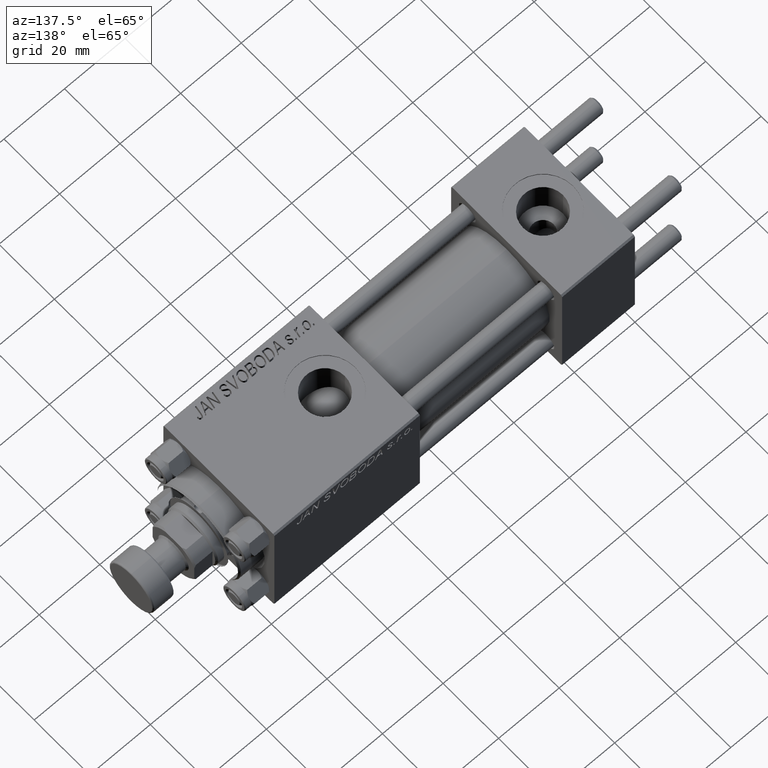
[diagram: clean part render]
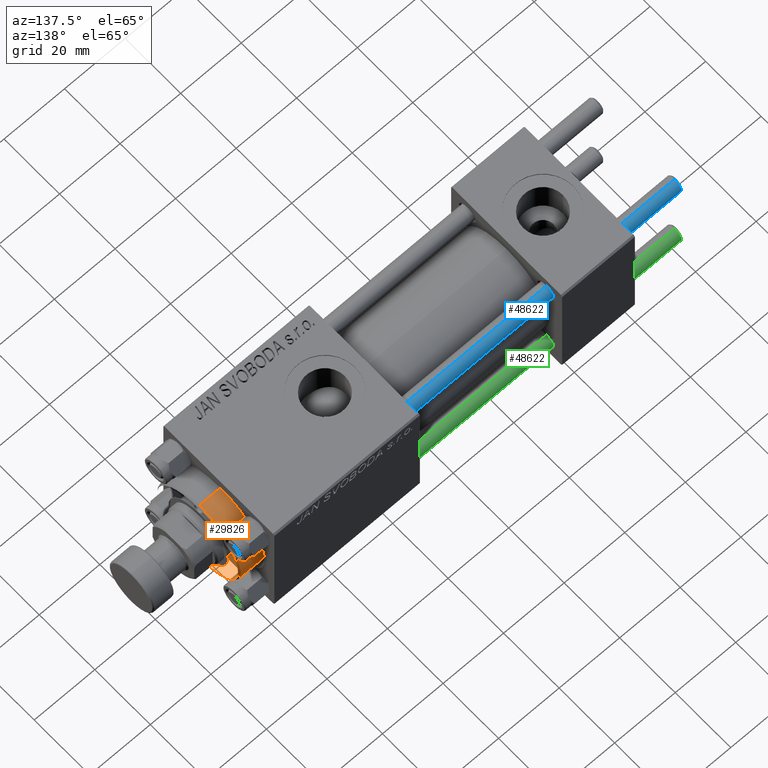
[diagram: same view with three faces highlighted in distinct colors, each labeled with its STEP entity id]
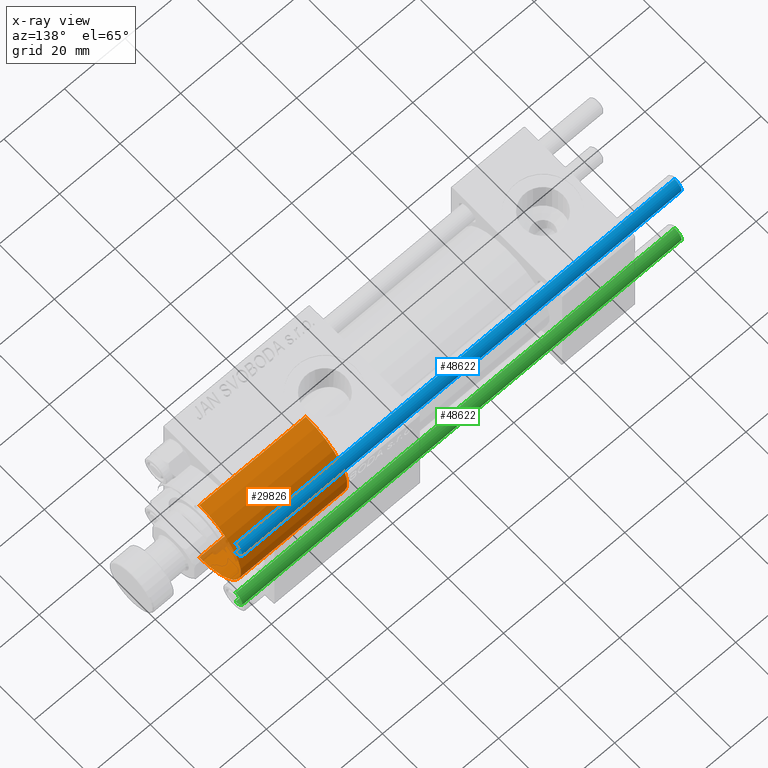
[diagram: x-ray of the same camera — body ghosted, the three highlighted faces saturated]
A machine part, auxiliary view with three faces highlighted in distinct colors.
The next image is the same camera in x-ray (body ghosted, the three faces saturated) — at least one of them is partly hidden behind the body in this view.
Their STEP definitions:

[orange] entity #29826 — the highlighted cylindrical surface (partial cylindrical patch) has radius 15 mm, axis along (-1, -0, 0).
#317 = CARTESIAN_POINT ( 'NONE',  ( -15.00000000000000000, 0.000000000000000000, 0.000000000000000000 ) ) ;
#350 = CARTESIAN_POINT ( 'NONE',  ( -15.00000000000000000, 0.000000000000000000, 35.19999999999999574 ) ) ;
#815 = DIRECTION ( 'NONE',  ( 0.000000000000000000, 0.000000000000000000, 1.000000000000000000 ) ) ;
#1138 = DIRECTION ( 'NONE',  ( -0.000000000000000000, -0.000000000000000000, -1.000000000000000000 ) ) ;
#1376 = CIRCLE ( 'NONE', #2202, 15.00000000000000000 ) ;
#1937 = EDGE_LOOP ( 'NONE', ( #17285, #32577, #9723, #36499 ) ) ;
#2202 = AXIS2_PLACEMENT_3D ( 'NONE', #9463, #815, #16836 ) ;
#2451 = DIRECTION ( 'NONE',  ( -0.000000000000000000, -0.000000000000000000, -1.000000000000000000 ) ) ;
#2825 = DIRECTION ( 'NONE',  ( -0.000000000000000000, -0.000000000000000000, -1.000000000000000000 ) ) ;
#5153 = DIRECTION ( 'NONE',  ( 0.000000000000000000, 0.000000000000000000, -1.000000000000000000 ) ) ;
#6276 = CIRCLE ( 'NONE', #13853, 15.00000000000000000 ) ;
#7955 = VERTEX_POINT ( 'NONE', #317 ) ;
#9463 = CARTESIAN_POINT ( 'NONE',  ( 0.000000000000000000, 0.000000000000000000, 0.000000000000000000 ) ) ;
#9723 = ORIENTED_EDGE ( 'NONE', *, *, #10672, .T. ) ;
#9825 = LINE ( 'NONE', #14018, #32662 ) ;
#10450 = CARTESIAN_POINT ( 'NONE',  ( 0.000000000000000000, 0.000000000000000000, 28.69999999999999929 ) ) ;
#10672 = EDGE_CURVE ( 'NONE', #24156, #7955, #1376, .T. ) ;
#13853 = AXIS2_PLACEMENT_3D ( 'NONE', #25389, #5153, #25138 ) ;
#14018 = CARTESIAN_POINT ( 'NONE',  ( 15.00000000000000000, 1.836970198721029589E-15, 28.69999999999999929 ) ) ;
#16836 = DIRECTION ( 'NONE',  ( 1.000000000000000000, 0.000000000000000000, 0.000000000000000000 ) ) ;
#17285 = ORIENTED_EDGE ( 'NONE', *, *, #25276, .T. ) ;
#18481 = EDGE_CURVE ( 'NONE', #24995, #24156, #9825, .T. ) ;
#19363 = CARTESIAN_POINT ( 'NONE',  ( 15.00000000000000000, 1.836970198721029589E-15, 0.000000000000000000 ) ) ;
#22043 = DIRECTION ( 'NONE',  ( -1.000000000000000000, 0.000000000000000000, 0.000000000000000000 ) ) ;
#22572 = FACE_OUTER_BOUND ( 'NONE', #1937, .T. ) ;
#24156 = VERTEX_POINT ( 'NONE', #19363 ) ;
#24507 = VERTEX_POINT ( 'NONE', #350 ) ;
#24995 = VERTEX_POINT ( 'NONE', #29452 ) ;
#25138 = DIRECTION ( 'NONE',  ( 1.000000000000000000, 0.000000000000000000, 0.000000000000000000 ) ) ;
#25276 = EDGE_CURVE ( 'NONE', #24507, #24995, #6276, .T. ) ;
#25389 = CARTESIAN_POINT ( 'NONE',  ( 0.000000000000000000, 0.000000000000000000, 35.19999999999999574 ) ) ;
#29452 = CARTESIAN_POINT ( 'NONE',  ( 15.00000000000000000, 1.836970198721029589E-15, 35.19999999999999574 ) ) ;
#29826 = ADVANCED_FACE ( 'NONE', ( #22572 ), #38840, .T. ) ;
#32577 = ORIENTED_EDGE ( 'NONE', *, *, #18481, .T. ) ;
#32662 = VECTOR ( 'NONE', #2451, 1000.000000000000000 ) ;
#33212 = CARTESIAN_POINT ( 'NONE',  ( -15.00000000000000000, 0.000000000000000000, 28.69999999999999929 ) ) ;
#35222 = VECTOR ( 'NONE', #1138, 1000.000000000000000 ) ;
#36499 = ORIENTED_EDGE ( 'NONE', *, *, #44558, .F. ) ;
#38840 = CYLINDRICAL_SURFACE ( 'NONE', #51654, 15.00000000000000000 ) ;
#44558 = EDGE_CURVE ( 'NONE', #24507, #7955, #48507, .T. ) ;
#48507 = LINE ( 'NONE', #33212, #35222 ) ;
#51654 = AXIS2_PLACEMENT_3D ( 'NONE', #10450, #2825, #22043 ) ;

[blue] entity #48622 — the highlighted cylindrical surface (edge-blend (fillet) strip) has radius 2.5 mm, axis along (-1, -0, -0).
#196 = VECTOR ( 'NONE', #8652, 1000.000000000000000 ) ;
#265 = CYLINDRICAL_SURFACE ( 'NONE', #5485, 2.500000000000000000 ) ;
#375 = AXIS2_PLACEMENT_3D ( 'NONE', #30600, #2238, #50365 ) ;
#2238 = DIRECTION ( 'NONE',  ( 0.000000000000000000, 0.000000000000000000, -1.000000000000000000 ) ) ;
#2258 = VERTEX_POINT ( 'NONE', #36150 ) ;
#2588 = CARTESIAN_POINT ( 'NONE',  ( -2.500000000000000000, 0.000000000000000000, 145.5000000000000284 ) ) ;
#5485 = AXIS2_PLACEMENT_3D ( 'NONE', #8409, #36272, #47881 ) ;
#8371 = EDGE_CURVE ( 'NONE', #16095, #2258, #51496, .T. ) ;
#8409 = CARTESIAN_POINT ( 'NONE',  ( 0.000000000000000000, 0.000000000000000000, 146.0000000000000000 ) ) ;
#8652 = DIRECTION ( 'NONE',  ( -0.000000000000000000, -0.000000000000000000, -1.000000000000000000 ) ) ;
#8777 = ORIENTED_EDGE ( 'NONE', *, *, #16245, .T. ) ;
#10783 = ORIENTED_EDGE ( 'NONE', *, *, #19856, .T. ) ;
#14664 = DIRECTION ( 'NONE',  ( -0.000000000000000000, -0.000000000000000000, -1.000000000000000000 ) ) ;
#16095 = VERTEX_POINT ( 'NONE', #2588 ) ;
#16245 = EDGE_CURVE ( 'NONE', #17563, #2258, #46915, .T. ) ;
#17563 = VERTEX_POINT ( 'NONE', #35055 ) ;
#19135 = CARTESIAN_POINT ( 'NONE',  ( 0.000000000000000000, 0.000000000000000000, 0.5000000000000559552 ) ) ;
#19161 = AXIS2_PLACEMENT_3D ( 'NONE', #19135, #34910, #27797 ) ;
#19856 = EDGE_CURVE ( 'NONE', #51101, #17563, #44164, .T. ) ;
#22195 = CIRCLE ( 'NONE', #375, 2.500000000000000000 ) ;
#24376 = EDGE_CURVE ( 'NONE', #16095, #51101, #22195, .T. ) ;
#25788 = CARTESIAN_POINT ( 'NONE',  ( 2.500000000000000000, 3.061616997868383141E-16, 145.5000000000000284 ) ) ;
#27797 = DIRECTION ( 'NONE',  ( 1.000000000000000000, 0.000000000000000000, 0.000000000000000000 ) ) ;
#30600 = CARTESIAN_POINT ( 'NONE',  ( 0.000000000000000000, 0.000000000000000000, 145.5000000000000284 ) ) ;
#30737 = ORIENTED_EDGE ( 'NONE', *, *, #24376, .T. ) ;
#34910 = DIRECTION ( 'NONE',  ( -0.000000000000000000, -0.000000000000000000, 1.000000000000000000 ) ) ;
#34923 = CARTESIAN_POINT ( 'NONE',  ( -2.500000000000000000, 0.000000000000000000, 146.0000000000000000 ) ) ;
#35055 = CARTESIAN_POINT ( 'NONE',  ( 2.500000000000000000, 3.061616997868383141E-16, 0.5000000000000559552 ) ) ;
#36150 = CARTESIAN_POINT ( 'NONE',  ( -2.500000000000000000, 0.000000000000000000, 0.5000000000000559552 ) ) ;
#36269 = CARTESIAN_POINT ( 'NONE',  ( 2.500000000000000000, 3.061616997868383141E-16, 146.0000000000000000 ) ) ;
#36272 = DIRECTION ( 'NONE',  ( -0.000000000000000000, -0.000000000000000000, -1.000000000000000000 ) ) ;
#36522 = VECTOR ( 'NONE', #14664, 1000.000000000000000 ) ;
#43767 = ORIENTED_EDGE ( 'NONE', *, *, #8371, .F. ) ;
#44164 = LINE ( 'NONE', #36269, #196 ) ;
#46915 = CIRCLE ( 'NONE', #19161, 2.500000000000000000 ) ;
#47881 = DIRECTION ( 'NONE',  ( -1.000000000000000000, 0.000000000000000000, 0.000000000000000000 ) ) ;
#48622 = ADVANCED_FACE ( 'NONE', ( #48673 ), #265, .T. ) ;
#48673 = FACE_OUTER_BOUND ( 'NONE', #48808, .T. ) ;
#48808 = EDGE_LOOP ( 'NONE', ( #30737, #10783, #8777, #43767 ) ) ;
#50365 = DIRECTION ( 'NONE',  ( 1.000000000000000000, 0.000000000000000000, 0.000000000000000000 ) ) ;
#51101 = VERTEX_POINT ( 'NONE', #25788 ) ;
#51496 = LINE ( 'NONE', #34923, #36522 ) ;

[green] entity #48622 — the highlighted cylindrical surface (edge-blend (fillet) strip) has radius 2.5 mm, axis along (1, 0, -0).
#196 = VECTOR ( 'NONE', #8652, 1000.000000000000000 ) ;
#265 = CYLINDRICAL_SURFACE ( 'NONE', #5485, 2.500000000000000000 ) ;
#375 = AXIS2_PLACEMENT_3D ( 'NONE', #30600, #2238, #50365 ) ;
#2238 = DIRECTION ( 'NONE',  ( 0.000000000000000000, 0.000000000000000000, -1.000000000000000000 ) ) ;
#2258 = VERTEX_POINT ( 'NONE', #36150 ) ;
#2588 = CARTESIAN_POINT ( 'NONE',  ( -2.500000000000000000, 0.000000000000000000, 145.5000000000000284 ) ) ;
#5485 = AXIS2_PLACEMENT_3D ( 'NONE', #8409, #36272, #47881 ) ;
#8371 = EDGE_CURVE ( 'NONE', #16095, #2258, #51496, .T. ) ;
#8409 = CARTESIAN_POINT ( 'NONE',  ( 0.000000000000000000, 0.000000000000000000, 146.0000000000000000 ) ) ;
#8652 = DIRECTION ( 'NONE',  ( -0.000000000000000000, -0.000000000000000000, -1.000000000000000000 ) ) ;
#8777 = ORIENTED_EDGE ( 'NONE', *, *, #16245, .T. ) ;
#10783 = ORIENTED_EDGE ( 'NONE', *, *, #19856, .T. ) ;
#14664 = DIRECTION ( 'NONE',  ( -0.000000000000000000, -0.000000000000000000, -1.000000000000000000 ) ) ;
#16095 = VERTEX_POINT ( 'NONE', #2588 ) ;
#16245 = EDGE_CURVE ( 'NONE', #17563, #2258, #46915, .T. ) ;
#17563 = VERTEX_POINT ( 'NONE', #35055 ) ;
#19135 = CARTESIAN_POINT ( 'NONE',  ( 0.000000000000000000, 0.000000000000000000, 0.5000000000000559552 ) ) ;
#19161 = AXIS2_PLACEMENT_3D ( 'NONE', #19135, #34910, #27797 ) ;
#19856 = EDGE_CURVE ( 'NONE', #51101, #17563, #44164, .T. ) ;
#22195 = CIRCLE ( 'NONE', #375, 2.500000000000000000 ) ;
#24376 = EDGE_CURVE ( 'NONE', #16095, #51101, #22195, .T. ) ;
#25788 = CARTESIAN_POINT ( 'NONE',  ( 2.500000000000000000, 3.061616997868383141E-16, 145.5000000000000284 ) ) ;
#27797 = DIRECTION ( 'NONE',  ( 1.000000000000000000, 0.000000000000000000, 0.000000000000000000 ) ) ;
#30600 = CARTESIAN_POINT ( 'NONE',  ( 0.000000000000000000, 0.000000000000000000, 145.5000000000000284 ) ) ;
#30737 = ORIENTED_EDGE ( 'NONE', *, *, #24376, .T. ) ;
#34910 = DIRECTION ( 'NONE',  ( -0.000000000000000000, -0.000000000000000000, 1.000000000000000000 ) ) ;
#34923 = CARTESIAN_POINT ( 'NONE',  ( -2.500000000000000000, 0.000000000000000000, 146.0000000000000000 ) ) ;
#35055 = CARTESIAN_POINT ( 'NONE',  ( 2.500000000000000000, 3.061616997868383141E-16, 0.5000000000000559552 ) ) ;
#36150 = CARTESIAN_POINT ( 'NONE',  ( -2.500000000000000000, 0.000000000000000000, 0.5000000000000559552 ) ) ;
#36269 = CARTESIAN_POINT ( 'NONE',  ( 2.500000000000000000, 3.061616997868383141E-16, 146.0000000000000000 ) ) ;
#36272 = DIRECTION ( 'NONE',  ( -0.000000000000000000, -0.000000000000000000, -1.000000000000000000 ) ) ;
#36522 = VECTOR ( 'NONE', #14664, 1000.000000000000000 ) ;
#43767 = ORIENTED_EDGE ( 'NONE', *, *, #8371, .F. ) ;
#44164 = LINE ( 'NONE', #36269, #196 ) ;
#46915 = CIRCLE ( 'NONE', #19161, 2.500000000000000000 ) ;
#47881 = DIRECTION ( 'NONE',  ( -1.000000000000000000, 0.000000000000000000, 0.000000000000000000 ) ) ;
#48622 = ADVANCED_FACE ( 'NONE', ( #48673 ), #265, .T. ) ;
#48673 = FACE_OUTER_BOUND ( 'NONE', #48808, .T. ) ;
#48808 = EDGE_LOOP ( 'NONE', ( #30737, #10783, #8777, #43767 ) ) ;
#50365 = DIRECTION ( 'NONE',  ( 1.000000000000000000, 0.000000000000000000, 0.000000000000000000 ) ) ;
#51101 = VERTEX_POINT ( 'NONE', #25788 ) ;
#51496 = LINE ( 'NONE', #34923, #36522 ) ;